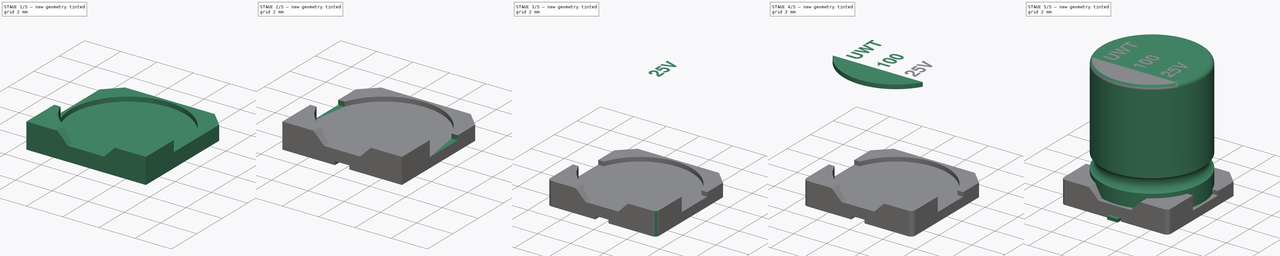
[diagram: build sequence overview — one tinted view per stage of 5, left to right]
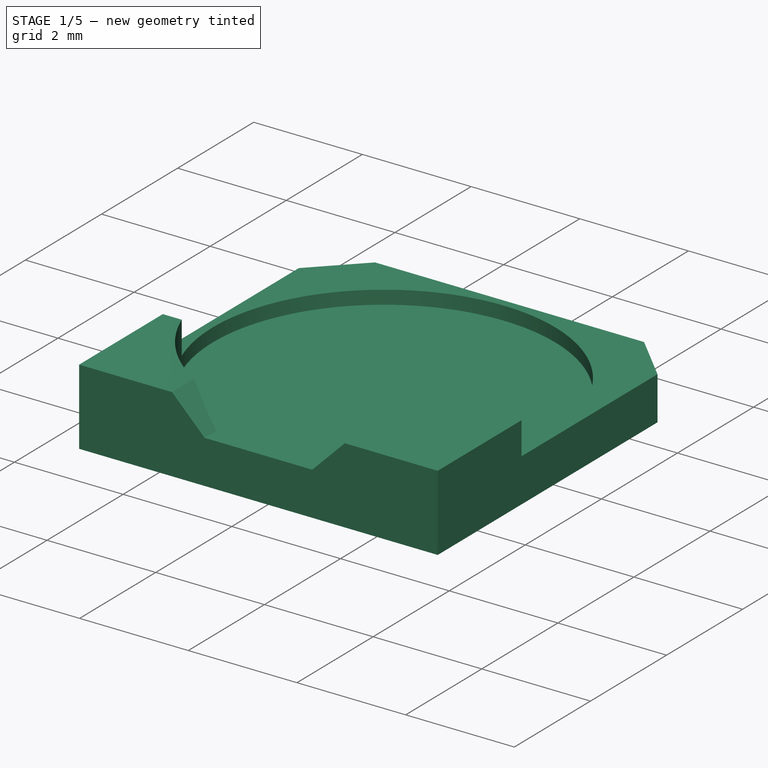
[diagram: stage 1 of 5 — iso view after this stage's code; geometry added in this stage tinted green]
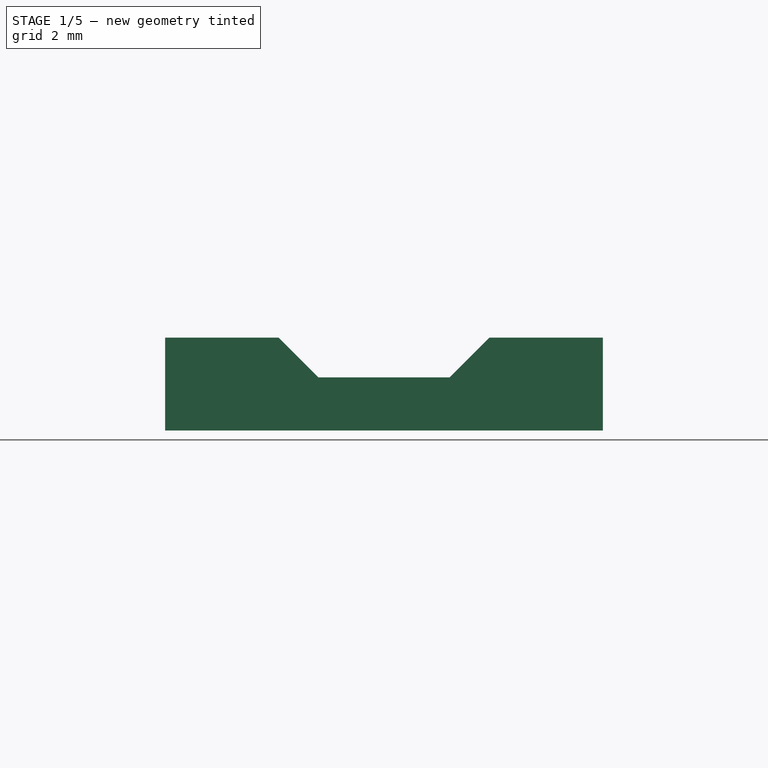
[diagram: stage 1 of 5 — front view after this stage's code; geometry added in this stage tinted green]
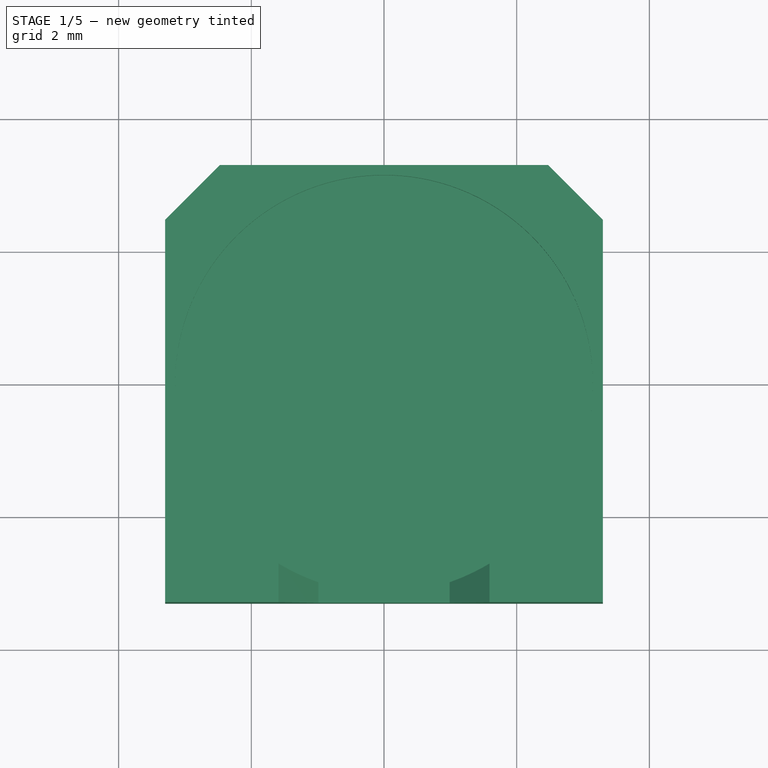
[diagram: stage 1 of 5 — top view after this stage's code; geometry added in this stage tinted green]
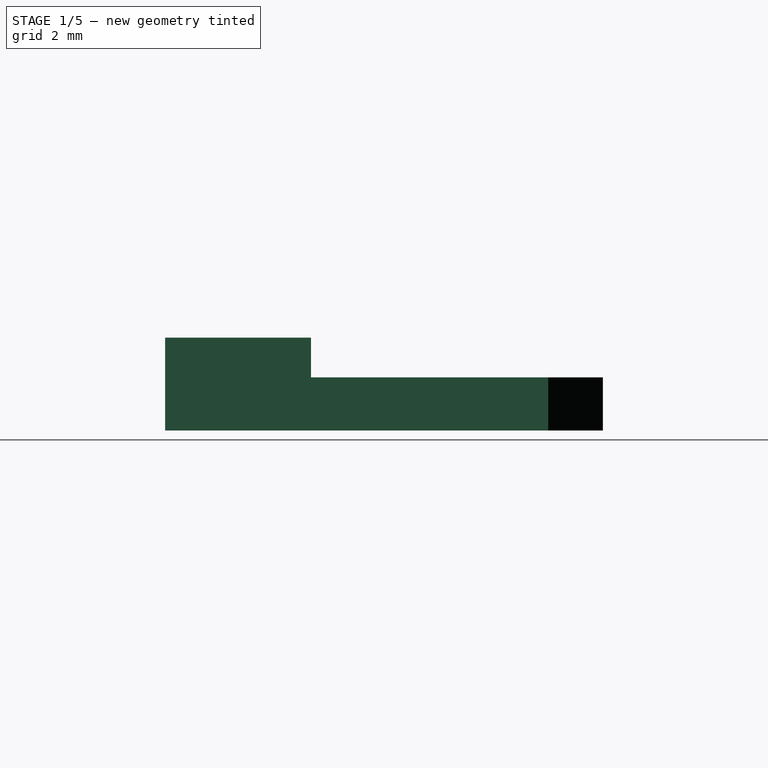
[diagram: stage 1 of 5 — right view after this stage's code; geometry added in this stage tinted green]
FCSTD DOCUMENT  (FreeCAD 0.19R16945 (Git))
Label: UWT1E101MCL1GS
License: All rights reserved
LicenseURL: http://en.wikipedia.org/wiki/All_rights_reserved
objects: Sketcher::SketchObject×10, PartDesign::Pocket×6, PartDesign::Body×5, PartDesign::Pad×3, Part::Part2DObjectPython×3, Part::Extrusion×3, PartDesign::Fillet×2, Spreadsheet::Sheet×1, PartDesign::Revolution×1, PartDesign::Mirrored×1, PartDesign::FeatureBase×1, Part::MultiFuse×1
note: 46 computed .brp shape members not serialized (recipe doc carries the construction recipe); baked Part::Feature solids carry a one-line shape summary decoded from their .brp

FEATURE [Spreadsheet::Sheet] Spreadsheet
  cells = B1=6.3x7.7; A2=dim_A; B2(dim_A)==2.4mm; A3=dim_B; B3(dim_B)==6.6mm; A4=dim_C; B4(dim_C)==6.6mm; A5=dim_E; B5(dim_E)==2.2mm; A6=dim_D; B6(dim_D)==6.3mm; A7=dim_L; B7(dim_L)==7.7mm; A8=dim_H; B8(dim_H)==0.65mm; A9=dim_t; B9(dim_t)==0.2mm; C9=lead thickness; A10=dim_p1; B10(dim_p1)==1.4mm; C10=base total height; A11=dim_p2; B11(dim_p2)==0.8mm; C11=base lowest height; A12=dim_p3; B12(dim_p3)==0.25mm; C12=base depth for cap; A13=dim_r1; B13(dim_r1)==0.5mm; C13=cap circle; A14=dim_r2; B14(dim_r2)==0.25mm; C14=cap fillet
FEATURE [Sketcher::SketchObject] Sketch
  MapMode = 5
  Support = -> [XY_Plane]
  expr: Constraints[12] = 0.75 * Spreadsheet.dim_C
  expr: Constraints[10] = Spreadsheet.dim_C
  expr: Constraints[9] = Spreadsheet.dim_B
  sketch-geometry (7):
    g0: LineSegment StartX=3.3 StartY=-3.3 StartZ=0 EndX=-3.3 EndY=-3.3 EndZ=0
    g1: LineSegment StartX=-3.3 StartY=-3.3 StartZ=0 EndX=-3.3 EndY=2.475 EndZ=0
    g2: LineSegment StartX=-3.3 StartY=2.475 StartZ=0 EndX=-2.475 EndY=3.3 EndZ=0
    g3: LineSegment StartX=-2.475 StartY=3.3 StartZ=0 EndX=2.475 EndY=3.3 EndZ=0
    g4: LineSegment StartX=2.475 StartY=3.3 StartZ=0 EndX=3.3 EndY=2.475 EndZ=0
    g5: LineSegment StartX=3.3 StartY=2.475 StartZ=0 EndX=3.3 EndY=-3.3 EndZ=0
    g6: LineSegment [constr] StartX=-2.475 StartY=3.3 StartZ=0 EndX=-2.475 EndY=-3.3 EndZ=0
  constraints (18):
    c: Coincident(g0,g1)
    c: Vertical(g1)
    c: Coincident(g1,g2)
    c: Coincident(g2,g3)
    c: Coincident(g3,g4)
    c: Coincident(g4,g5)
    c: Coincident(g5,g0)
    c: Symmetric(g0,g0,g-2)
    c: Symmetric(g3,g2,g-2)
    c: DistanceY(g0,g3) = 6.6
    c: DistanceX(g0,g0) = 6.6
    c: Angle(g4,g5) = 2.35619
    c: DistanceX(g3,g3) = 4.95
    c: Vertical(g5)
    c: Equal(g4,g2)
    c: Coincident(g6,g2)
    c: PointOnObject(g6,g0)
    c: Symmetric(g6,g2,g-1)
FEATURE [PartDesign::Pad] Pad
  Length = 1.4
  Length2 = 100
  Profile = -> Sketch
  Type = 0
  expr: Length = Spreadsheet.dim_p1
FEATURE [Sketcher::SketchObject] Sketch001
  MapMode = 5
  Placement = pos=(0,0,0) rot=(1,0,0;1.5708rad)
  Support = -> [XZ_Plane]
  expr: Constraints[8] = Spreadsheet.dim_p2
  expr: Constraints[6] = 0.3 * Spreadsheet.dim_C
  sketch-geometry (4):
    g0: LineSegment StartX=0.99 StartY=0.8 StartZ=0 EndX=-0.99 EndY=0.8 EndZ=0
    g1: LineSegment StartX=-0.99 StartY=0.8 StartZ=0 EndX=-2.3222 EndY=2.1322 EndZ=0
    g2: LineSegment StartX=-2.3222 StartY=2.1322 StartZ=0 EndX=2.3222 EndY=2.1322 EndZ=0
    g3: LineSegment StartX=2.3222 StartY=2.1322 StartZ=0 EndX=0.99 EndY=0.8 EndZ=0
  constraints (9):
    c: Coincident(g0,g1)
    c: Coincident(g1,g2)
    c: Coincident(g2,g3)
    c: Coincident(g3,g0)
    c: Symmetric(g2,g1,g-2)
    c: Symmetric(g0,g0,g-2)
    c: DistanceX(g0,g0) = 1.98
    c: Angle(g3,g0) = 2.35619
    c: DistanceY(g-1,g0) = 0.8
FEATURE [PartDesign::Pocket] Pocket
  BaseFeature = -> Pad
  Length = 5
  Length2 = 100
  Midplane = true
  Profile = -> Sketch001
  Refine = true
  Type = 1
FEATURE [Sketcher::SketchObject] Sketch002
  MapMode = 5
  Placement = pos=(0,0,0) rot=(0.57735,0.57735,0.57735;2.0944rad)
  Support = -> [YZ_Plane]
  expr: Constraints[9] = Spreadsheet.dim_p2
  expr: Constraints[7] = Spreadsheet.dim_C / 6
  sketch-geometry (4):
    g0: LineSegment StartX=-1.1 StartY=3.10973 StartZ=0 EndX=-1.1 EndY=0.8 EndZ=0
    g1: LineSegment StartX=-1.1 StartY=0.8 StartZ=0 EndX=3.43585 EndY=0.8 EndZ=0
    g2: LineSegment StartX=3.43585 StartY=0.8 StartZ=0 EndX=3.43585 EndY=3.10973 EndZ=0
    g3: LineSegment StartX=3.43585 StartY=3.10973 StartZ=0 EndX=-1.1 EndY=3.10973 EndZ=0
  constraints (10):
    c: Coincident(g0,g1)
    c: Horizontal(g1)
    c: Coincident(g1,g2)
    c: Vertical(g2)
    c: Coincident(g2,g3)
    c: Coincident(g3,g0)
    c: Horizontal(g3)
    c: DistanceX(g0,g-1) = 1.1
    c: Vertical(g0)
    c: DistanceY(g-1,g0) = 0.8
FEATURE [PartDesign::Pocket] Pocket001
  BaseFeature = -> Pocket
  Length = 5
  Length2 = 100
  Midplane = true
  Profile = -> Sketch002
  Refine = true
  Type = 1
FEATURE [Sketcher::SketchObject] Sketch003
  AttachmentOffset = pos=(0,0,0.8) rot=(0,0,1;0rad)
  MapMode = 5
  Placement = pos=(0,0,0.8) rot=(0,0,1;0rad)
  Support = -> [XY_Plane]
  expr: AttachmentOffset.Base.z = Spreadsheet.dim_p2
  expr: Constraints[1] = Spreadsheet.dim_D / 2
  sketch-geometry (1):
    g0: Circle CenterX=0 CenterY=0 CenterZ=0 NormalX=0 NormalY=0 NormalZ=1 AngleXU=0 Radius=3.15
  constraints (2):
    c: Coincident(g0,g-1)
    c: Radius(g0) = 3.15
FEATURE [PartDesign::Pocket] Pocket002
  BaseFeature = -> Pocket001
  Length = 0.25
  Length2 = 1.4
  Profile = -> Sketch003
  Type = 4
  expr: Length = Spreadsheet.dim_p3
  expr: Length2 = Spreadsheet.dim_p1
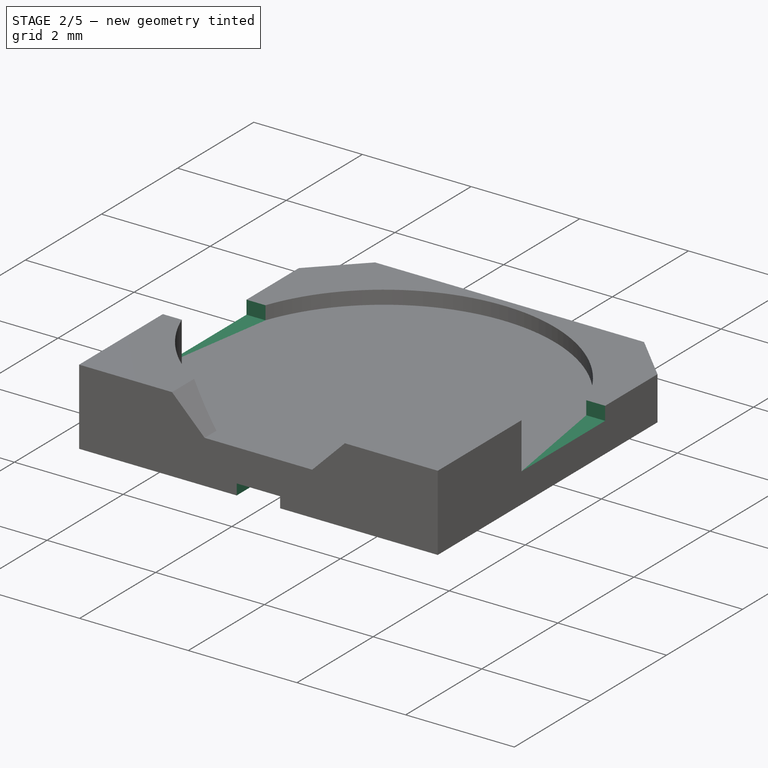
[diagram: stage 2 of 5 — iso view after this stage's code; geometry added in this stage tinted green]
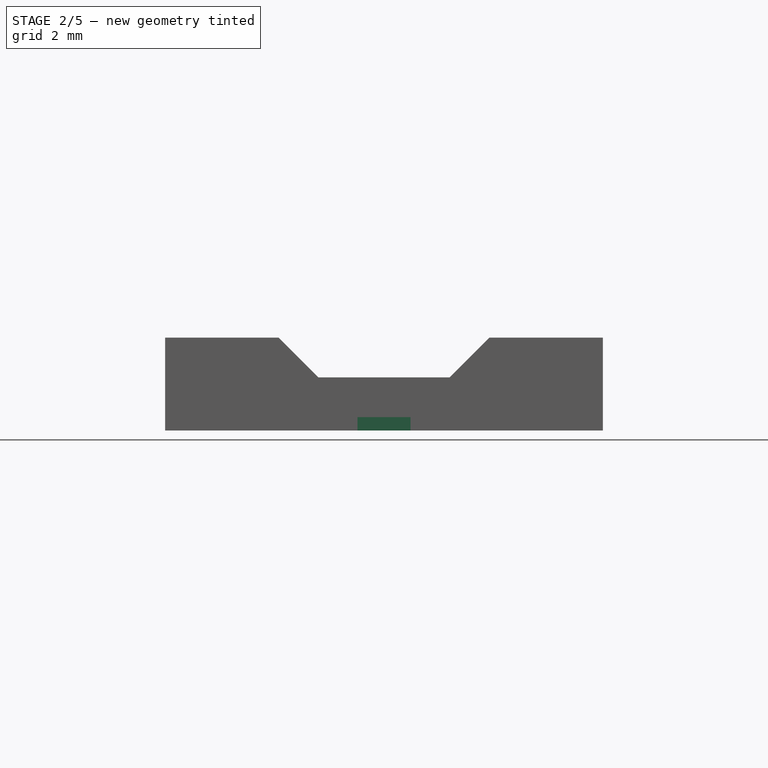
[diagram: stage 2 of 5 — front view after this stage's code; geometry added in this stage tinted green]
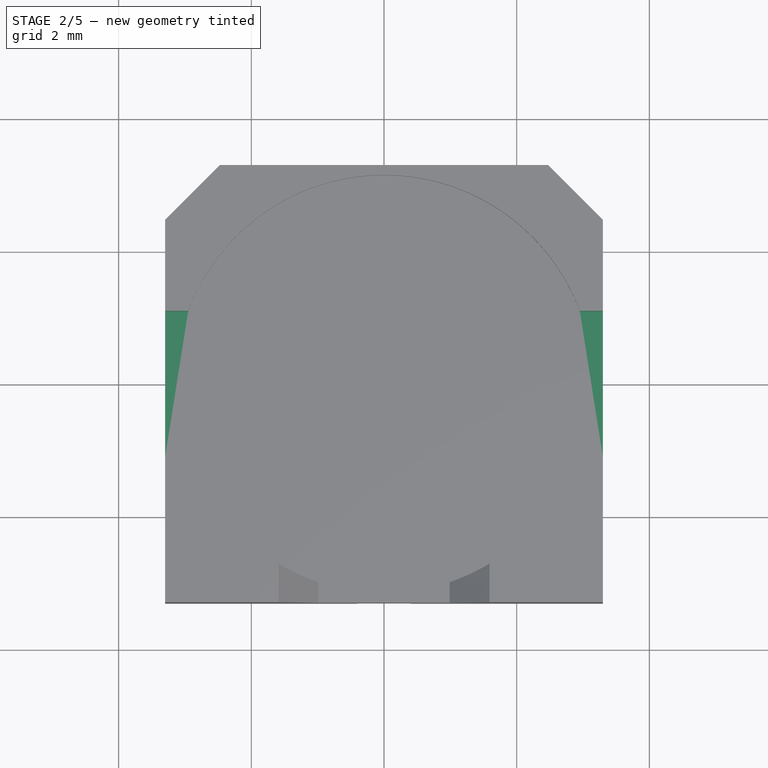
[diagram: stage 2 of 5 — top view after this stage's code; geometry added in this stage tinted green]
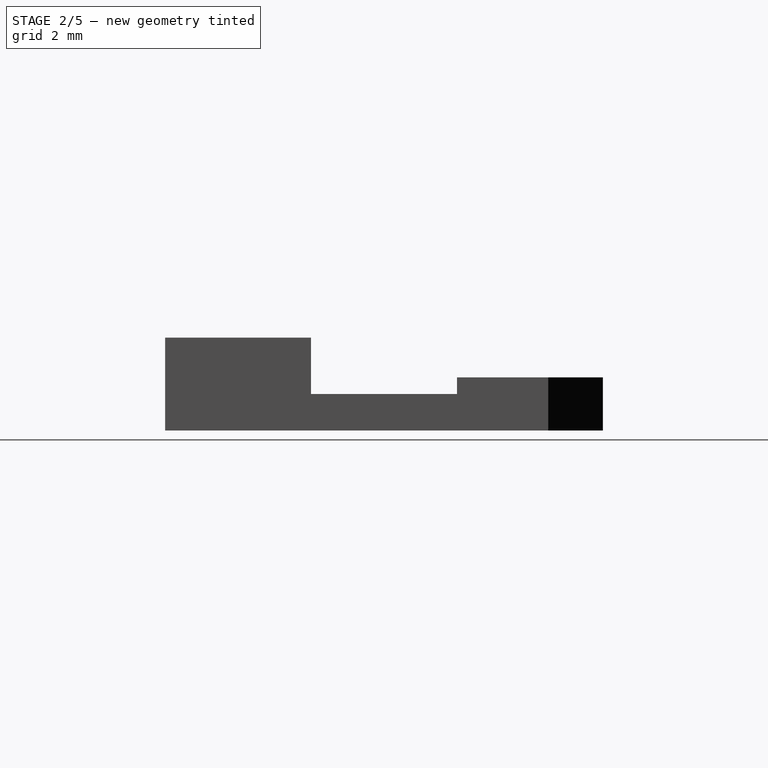
[diagram: stage 2 of 5 — right view after this stage's code; geometry added in this stage tinted green]
FEATURE [Sketcher::SketchObject] Sketch004
  MapMode = 5
  Placement = pos=(0,0,0) rot=(0.57735,0.57735,0.57735;2.0944rad)
  Support = -> [YZ_Plane]
  expr: Constraints[9] = Spreadsheet.dim_p2 - Spreadsheet.dim_p3
  expr: Constraints[8] = Spreadsheet.dim_C / 3
  sketch-geometry (4):
    g0: LineSegment StartX=-1.1 StartY=3.86533 StartZ=0 EndX=1.1 EndY=3.86533 EndZ=0
    g1: LineSegment StartX=1.1 StartY=3.86533 StartZ=0 EndX=1.1 EndY=0.55 EndZ=0
    g2: LineSegment StartX=1.1 StartY=0.55 StartZ=0 EndX=-1.1 EndY=0.55 EndZ=0
    g3: LineSegment StartX=-1.1 StartY=0.55 StartZ=0 EndX=-1.1 EndY=3.86533 EndZ=0
  constraints (10):
    c: Coincident(g0,g1)
    c: Coincident(g1,g2)
    c: Coincident(g2,g3)
    c: Coincident(g3,g0)
    c: Horizontal(g0)
    c: Vertical(g1)
    c: Vertical(g3)
    c: Symmetric(g1,g2,g-2)
    c: DistanceX(g2,g2) = 2.2
    c: DistanceY(g-1,g1) = 0.55
FEATURE [PartDesign::Pocket] Pocket003
  BaseFeature = -> Pocket002
  Length = 5
  Length2 = 100
  Midplane = true
  Profile = -> Sketch004
  Refine = true
  Type = 1
FEATURE [Sketcher::SketchObject] Sketch006
  MapMode = 5
  Support = -> [XY_Plane]
  expr: Constraints[10] = Spreadsheet.dim_A
  expr: Constraints[9] = Spreadsheet.dim_E / 2
  expr: Constraints[8] = Spreadsheet.dim_H + 0.15mm
  sketch-geometry (4):
    g0: LineSegment StartX=-0.4 StartY=1.1 StartZ=0 EndX=0.4 EndY=1.1 EndZ=0
    g1: LineSegment StartX=0.4 StartY=1.1 StartZ=0 EndX=0.4 EndY=3.5 EndZ=0
    g2: LineSegment StartX=0.4 StartY=3.5 StartZ=0 EndX=-0.4 EndY=3.5 EndZ=0
    g3: LineSegment StartX=-0.4 StartY=3.5 StartZ=0 EndX=-0.4 EndY=1.1 EndZ=0
  constraints (11):
    c: Coincident(g0,g1)
    c: Coincident(g1,g2)
    c: Coincident(g2,g3)
    c: Coincident(g3,g0)
    c: Horizontal(g2)
    c: Vertical(g1)
    c: Vertical(g3)
    c: Symmetric(g0,g0,g-2)
    c: DistanceX(g2,g2) = 0.8
    c: DistanceY(g-1,g0) = 1.1
    c: DistanceY(g1,g1) = 2.4
FEATURE [PartDesign::Pocket] Pocket004
  BaseFeature = -> Pocket003
  Length = 0.2
  Length2 = 100
  Profile = -> Sketch006
  Reversed = true
  Type = 0
  expr: Length = Spreadsheet.dim_t
FEATURE [PartDesign::Mirrored] Mirrored
  BaseFeature = -> Pocket004
  MirrorPlane = -> XZ_Plane
  Originals = -> [Pocket004]
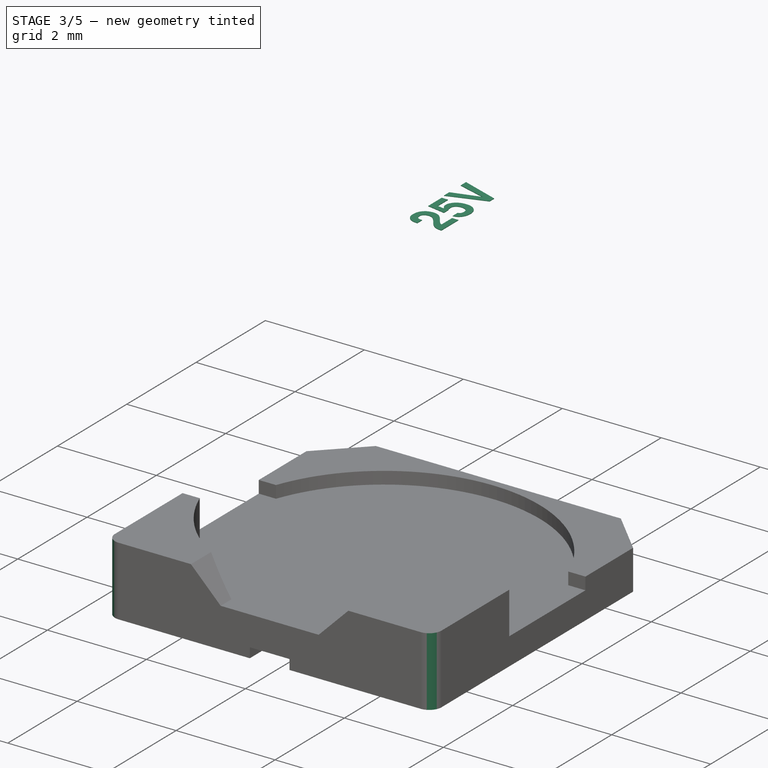
[diagram: stage 3 of 5 — iso view after this stage's code; geometry added in this stage tinted green]
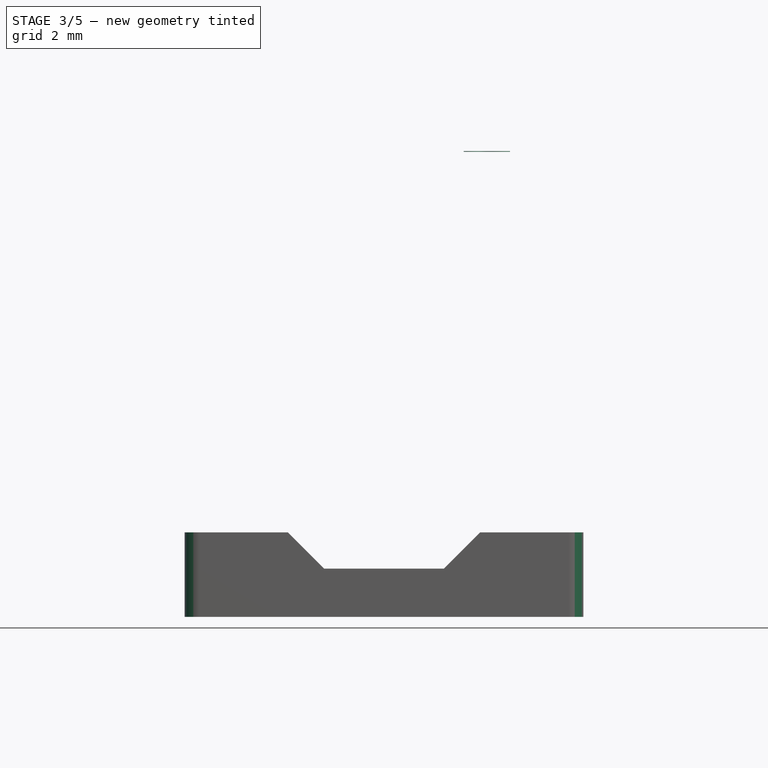
[diagram: stage 3 of 5 — front view after this stage's code; geometry added in this stage tinted green]
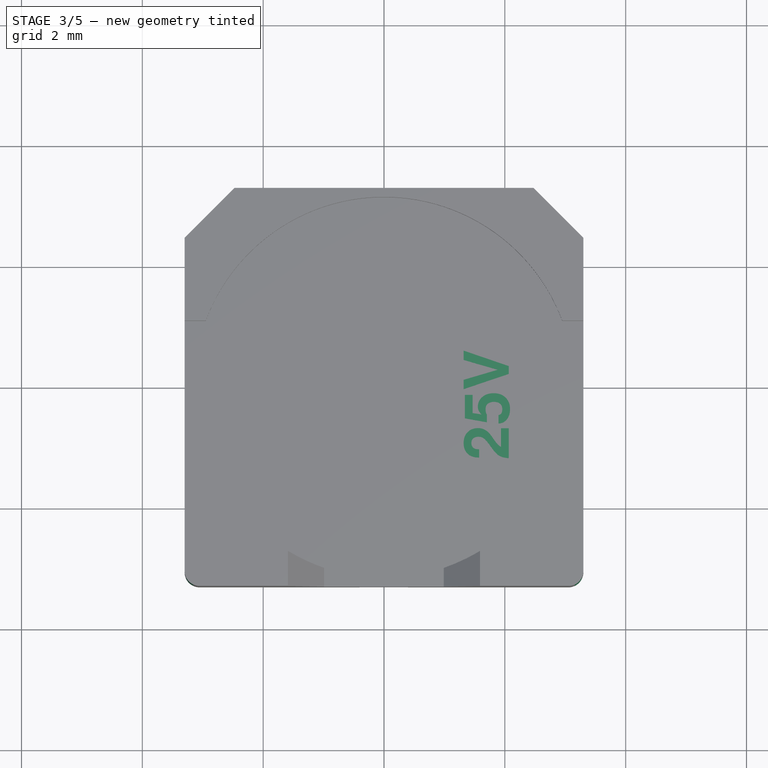
[diagram: stage 3 of 5 — top view after this stage's code; geometry added in this stage tinted green]
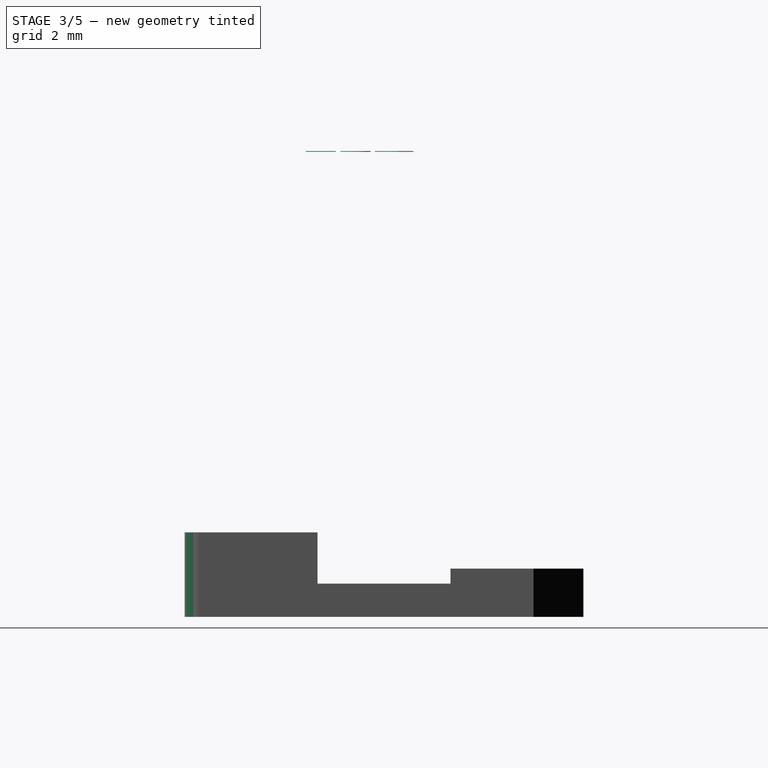
[diagram: stage 3 of 5 — right view after this stage's code; geometry added in this stage tinted green]
FEATURE [Sketcher::SketchObject] Sketch005
  AttachmentOffset = pos=(0,0,0) rot=(0,1,0;-1.5708rad)
  MapMode = 5
  Placement = pos=(0,0,0) rot=(-0.57735,0.57735,0.57735;4.18879rad)
  Support = -> [XZ_Plane001]
  expr: Constraints[20] = Spreadsheet.dim_r1 / 2
  expr: Constraints[19] = Spreadsheet.dim_p1 + Spreadsheet.dim_p3
  expr: Constraints[18] = Spreadsheet.dim_L
  expr: Constraints[17] = Spreadsheet.dim_p2 - Spreadsheet.dim_p3
  expr: Constraints[16] = Spreadsheet.dim_r1
  expr: Constraints[13] = Spreadsheet.dim_r2
  expr: Constraints[12] = Spreadsheet.dim_D / 2
  sketch-geometry (7):
    g0: LineSegment StartX=0 StartY=0.55 StartZ=0 EndX=3.15 EndY=0.55 EndZ=0
    g1: LineSegment StartX=3.15 StartY=0.55 StartZ=0 EndX=3.15 EndY=1.65 EndZ=0
    g2: LineSegment StartX=3.15 StartY=2.51603 StartZ=0 EndX=3.15 EndY=7.45 EndZ=0
    g3: LineSegment StartX=2.9 StartY=7.7 StartZ=0 EndX=0 EndY=7.7 EndZ=0
    g4: LineSegment StartX=0 StartY=7.7 StartZ=0 EndX=0 EndY=0.55 EndZ=0
    g5: ArcOfCircle CenterX=2.9 CenterY=7.45 CenterZ=0 NormalX=0 NormalY=0 NormalZ=1 AngleXU=0 Radius=0.25 StartAngle=-1.91e-13 EndAngle=1.5708
    g6: ArcOfCircle CenterX=3.4 CenterY=2.08301 CenterZ=0 NormalX=0 NormalY=0 NormalZ=1 AngleXU=0 Radius=0.5 StartAngle=2.0944 EndAngle=4.18879
  constraints (21):
    c: PointOnObject(g0,g-2)
    c: Horizontal(g0)
    c: Coincident(g1,g0)
    c: Vertical(g1)
    c: Vertical(g2)
    c: Horizontal(g3)
    c: Coincident(g4,g3)
    c: Coincident(g4,g0)
    c: Vertical(g4)
    c: Tangent(g2,g5) = -1.5708
    c: Tangent(g3,g5) = -1.5708
    c: Vertical(g1,g2)
    c: DistanceX(g0,g0) = 3.15
    c: DistanceY(g5,g3) = 0.25
    c: Coincident(g6,g1)
    c: Coincident(g6,g2)
    c: Radius(g6) = 0.5
    c: DistanceY(g-1,g0) = 0.55
    c: DistanceY(g-1,g3) = 7.7
    c: DistanceY(g-1,g1) = 1.65
    c: DistanceX(g2,g6) = 0.25
FEATURE [PartDesign::Revolution] Revolution
  Angle = 360
  Axis = (0,-2e-16,1)
  Base = (0,0,0)
  Placement = pos=(0,0,0) rot=(1,0,0;1.5708rad)
  Profile = -> Sketch005
  ReferenceAxis = -> Sketch005 [V_Axis]
  Refine = true
  Reversed = true
FEATURE [PartDesign::Body] Body003  label="LeadClone"
  BaseFeature = -> Pad001
  Group = -> [Clone]
  Origin = -> Origin003
  Placement = pos=(0,0,0) rot=(0,0,1;3.14159rad)
  Tip = -> Clone
FEATURE [Sketcher::SketchObject] Sketch008
  AttachmentOffset = pos=(0,0,7.7) rot=(0,0,1;0rad)
  MapMode = 5
  Placement = pos=(0,0,7.7) rot=(0,0,1;0rad)
  Support = -> [XY_Plane004]
  expr: Constraints[5] = Spreadsheet.dim_D / 4
  expr: Constraints[4] = Spreadsheet.dim_D / 2
  expr: AttachmentOffset.Base.z = Spreadsheet.dim_L
  sketch-geometry (2):
    g0: ArcOfCircle CenterX=0 CenterY=0 CenterZ=0 NormalX=0 NormalY=0 NormalZ=1 AngleXU=0 Radius=3.15 StartAngle=3.66519 EndAngle=5.75959
    g1: LineSegment StartX=-2.72798 StartY=-1.575 StartZ=0 EndX=2.72798 EndY=-1.575 EndZ=0
  constraints (6):
    c: Coincident(g1,g0)
    c: Coincident(g1,g0)
    c: Horizontal(g1)
    c: Coincident(g0,g-1)
    c: Radius(g0) = 3.15
    c: DistanceY(g0,g-1) = 1.575
FEATURE [Sketcher::SketchObject] Sketch009
  AttachmentOffset = pos=(0,0,7.7) rot=(0,0,1;0rad)
  MapMode = 5
  Placement = pos=(0,0,7.7) rot=(0,0,1;0rad)
  Support = -> [XY_Plane001]
  expr: AttachmentOffset.Base.z = Spreadsheet.dim_L
  expr: Constraints[5] = Spreadsheet.dim_D / 4
  expr: Constraints[4] = Spreadsheet.dim_D / 2
  sketch-geometry (2):
    g0: ArcOfCircle CenterX=0 CenterY=0 CenterZ=0 NormalX=0 NormalY=0 NormalZ=1 AngleXU=0 Radius=3.15 StartAngle=3.66519 EndAngle=5.75959
    g1: LineSegment StartX=-2.72798 StartY=-1.575 StartZ=0 EndX=2.72798 EndY=-1.575 EndZ=0
  constraints (6):
    c: Coincident(g0,g-1)
    c: Coincident(g1,g0)
    c: Coincident(g1,g0)
    c: Horizontal(g1)
    c: Radius(g0) = 3.15
    c: DistanceY(g0,g-1) = 1.575
FEATURE [PartDesign::Pocket] Pocket005
  BaseFeature = -> Revolution
  Length = 0.25
  Length2 = 100
  Placement = pos=(0,0,0) rot=(1,0,0;1.5708rad)
  Profile = -> Sketch009
  Type = 0
  expr: Length = Spreadsheet.dim_r2
FEATURE [Part::Extrusion] Extrude002  label="Text_50V"
  Base = -> ShapeString002
  Dir = (0,-2e-16,1)
  DirMode = 2
  FaceMakerClass = Part::FaceMakerBullseye
  LengthFwd = 0.01
  LengthRev = 0
  Solid = false
  Symmetric = false
FEATURE [PartDesign::Fillet] Fillet001
  Base = -> Mirrored [Edge6,Edge12]
  BaseFeature = -> Mirrored
  Radius = 0.25
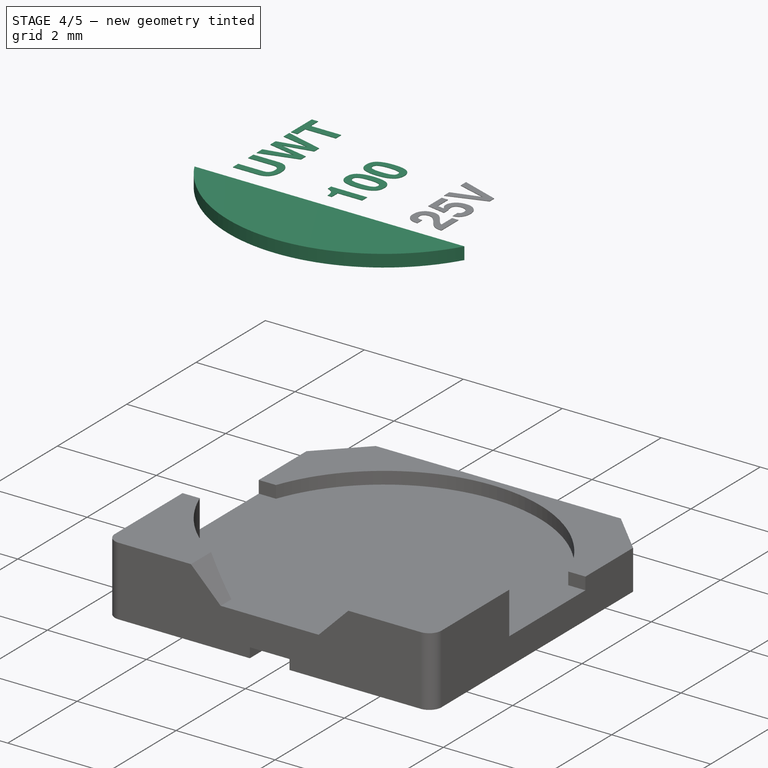
[diagram: stage 4 of 5 — iso view after this stage's code; geometry added in this stage tinted green]
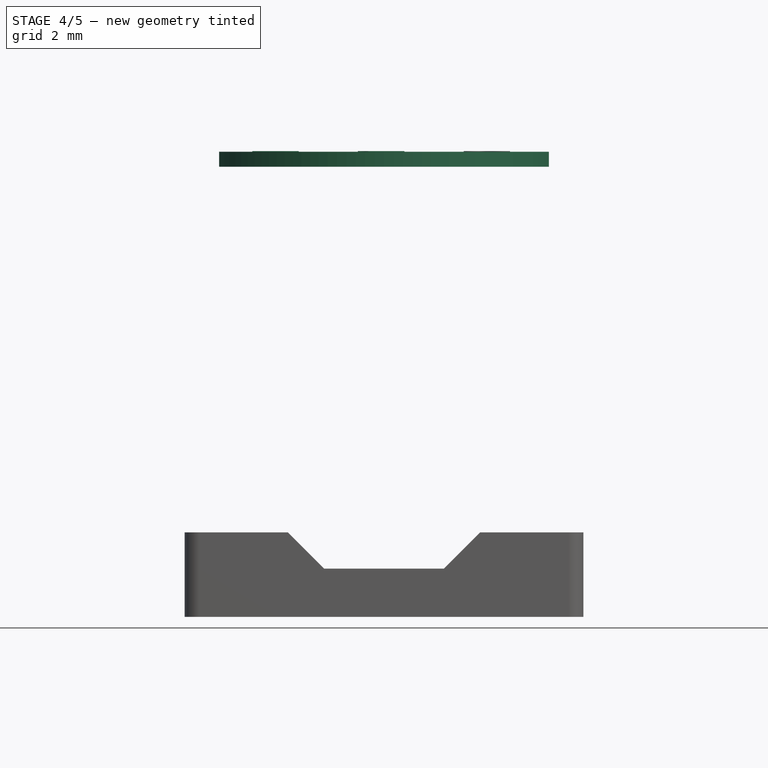
[diagram: stage 4 of 5 — front view after this stage's code; geometry added in this stage tinted green]
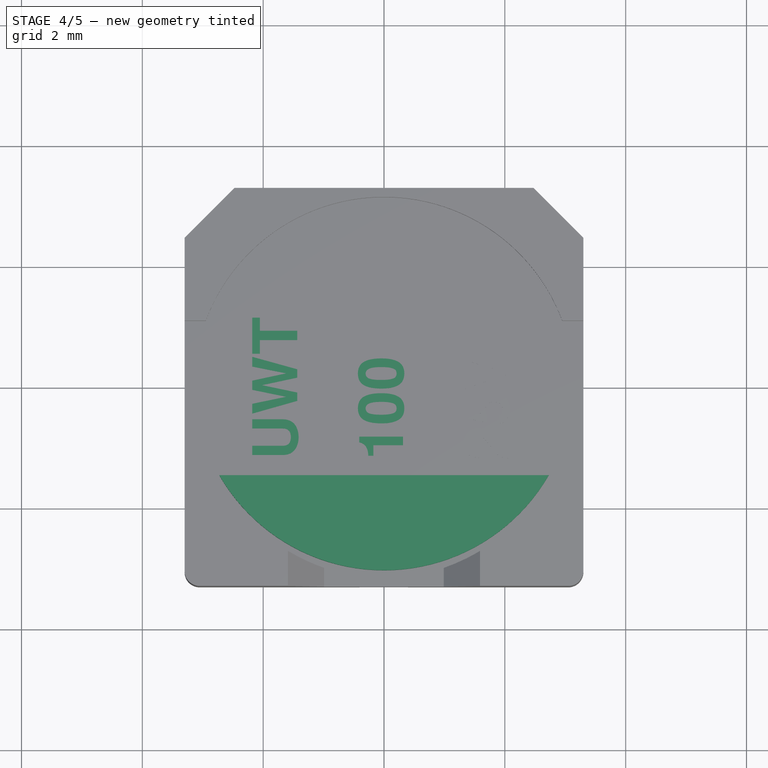
[diagram: stage 4 of 5 — top view after this stage's code; geometry added in this stage tinted green]
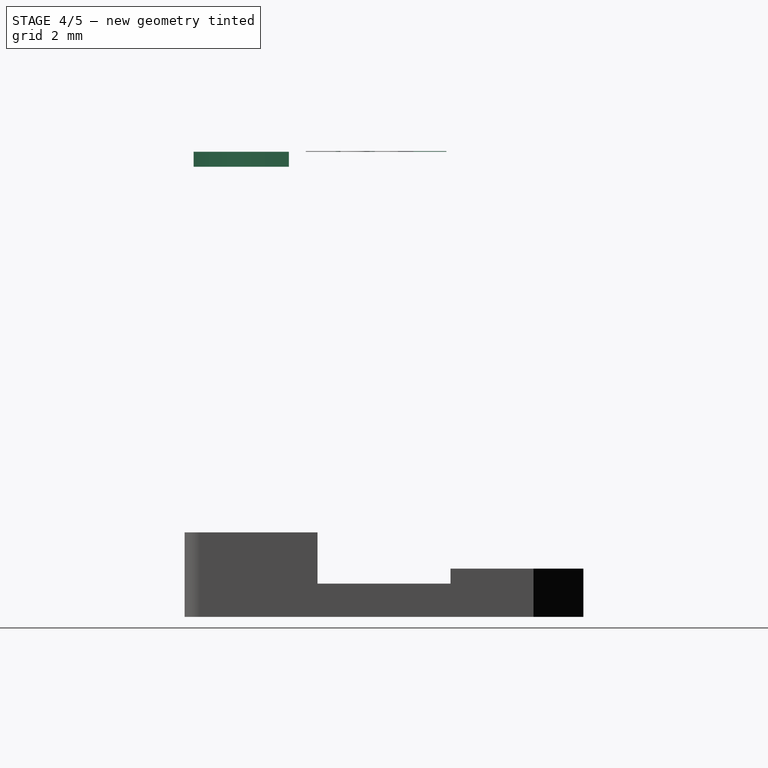
[diagram: stage 4 of 5 — right view after this stage's code; geometry added in this stage tinted green]
FEATURE [PartDesign::Body] Body001  label="Capacitor"
  Group = -> [Sketch005,Revolution,Sketch009,Pocket005]
  Origin = -> Origin001
  Tip = -> Pocket005
FEATURE [PartDesign::Pad] Pad002
  Length = 0.25
  Length2 = 100
  Profile = -> Sketch008
  Reversed = true
  Type = 0
  expr: Length = Spreadsheet.dim_r2
FEATURE [PartDesign::Body] Body004  label="Marking"
  Group = -> [Sketch008,Pad002,Fillet]
  Origin = -> Origin004
  Tip = -> Fillet
FEATURE [Part::Part2DObjectPython] ShapeString  # Draft 2D object (typed FeaturePython)
  AttachmentOffset = pos=(-0.25,1,0) rot=(0,0,1;3.14159rad)
  FontFile = <userpath>/Desktop/GitHub/freecad-projects/00-fonts/FreeSansBold.ttf
  MapMode = 6
  Placement = pos=(-1.43503,-1.325,7.7) rot=(0,0,1;1.5708rad)
  Size = 0.4
  String = UWT
  Support = -> [Pocket005]
  Tracking = 0
FEATURE [Part::Part2DObjectPython] ShapeString001  # Draft 2D object (typed FeaturePython)
  AttachmentOffset = pos=(-0.25,2.75,0) rot=(0,0,1;3.14159rad)
  FontFile = <userpath>/Desktop/GitHub/freecad-projects/00-fonts/FreeSansBold.ttf
  MapMode = 6
  Placement = pos=(0.314969,-1.325,7.7) rot=(0,0,1;1.5708rad)
  Size = 0.4
  String = 100
  Support = -> [Pocket005]
  Tracking = 0
FEATURE [Part::Part2DObjectPython] ShapeString002  # Draft 2D object (typed FeaturePython)
  AttachmentOffset = pos=(-0.25,4.5,0) rot=(0,0,1;3.14159rad)
  FontFile = <userpath>/Desktop/GitHub/freecad-projects/00-fonts/FreeSansBold.ttf
  MapMode = 6
  Placement = pos=(2.06497,-1.325,7.7) rot=(0,0,1;1.5708rad)
  Size = 0.4
  String = 25V
  Support = -> [Pocket005]
  Tracking = 0
FEATURE [Part::Extrusion] Extrude  label="Text_UWT"
  Base = -> ShapeString
  Dir = (0,-2e-16,1)
  DirMode = 2
  FaceMakerClass = Part::FaceMakerBullseye
  LengthFwd = 0.01
  LengthRev = 0
  Solid = true
  Symmetric = false
FEATURE [Part::Extrusion] Extrude001  label="Text_1"
  Base = -> ShapeString001
  Dir = (0,-2e-16,1)
  DirMode = 2
  FaceMakerClass = Part::FaceMakerBullseye
  LengthFwd = 0.01
  LengthRev = 0
  Solid = false
  Symmetric = false
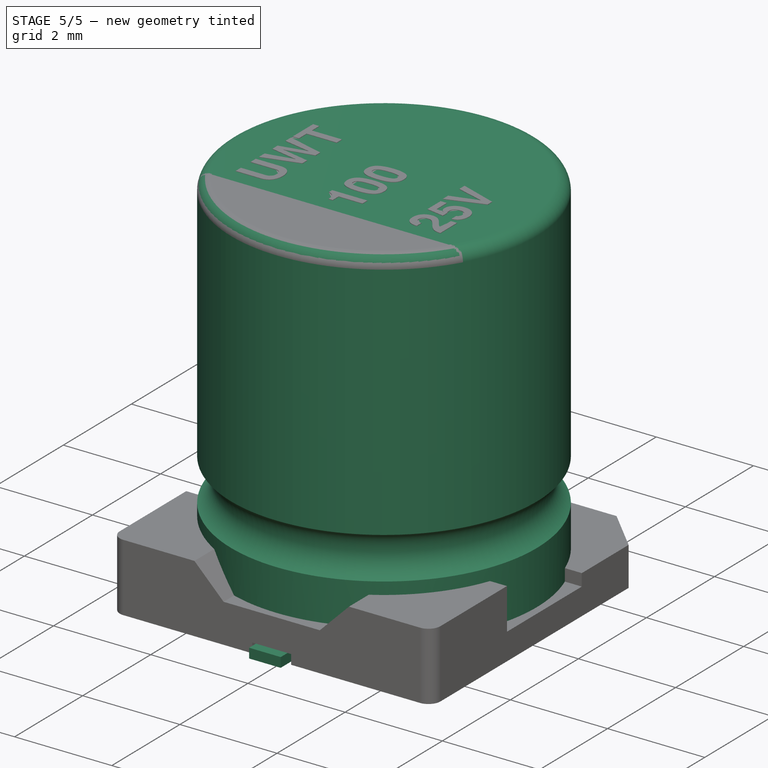
[diagram: stage 5 of 5 — iso view after this stage's code; geometry added in this stage tinted green]
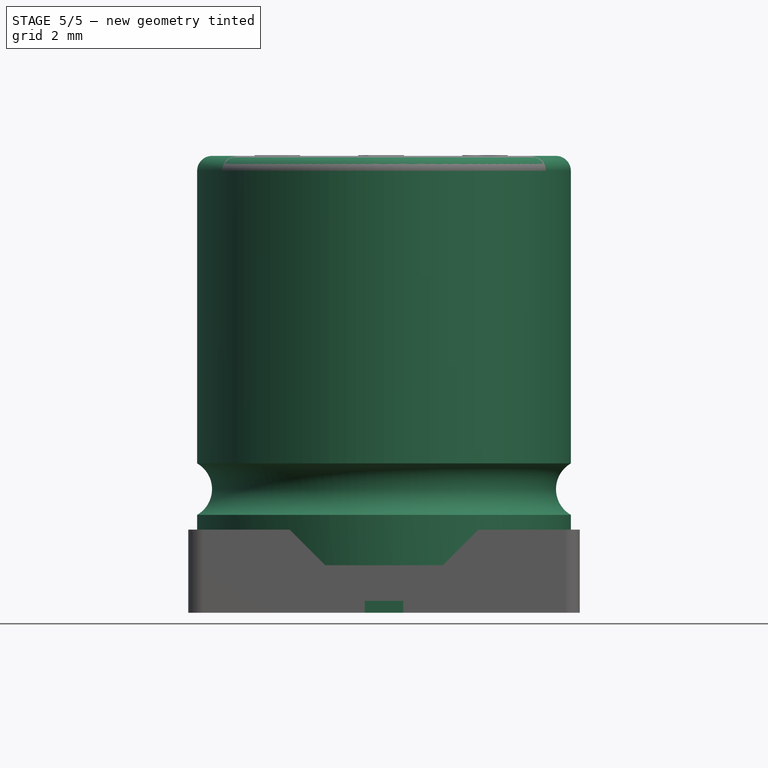
[diagram: stage 5 of 5 — front view after this stage's code; geometry added in this stage tinted green]
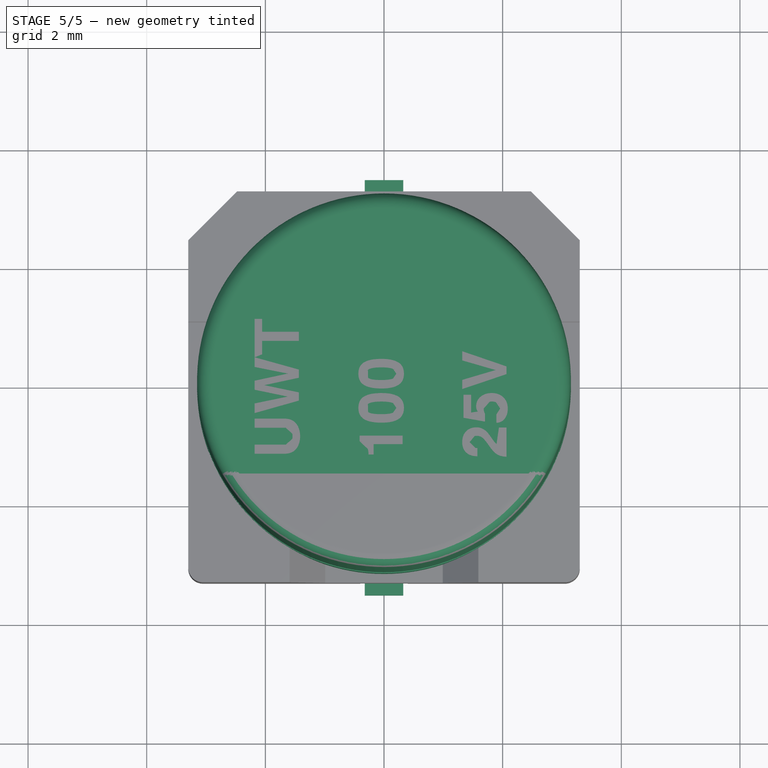
[diagram: stage 5 of 5 — top view after this stage's code; geometry added in this stage tinted green]
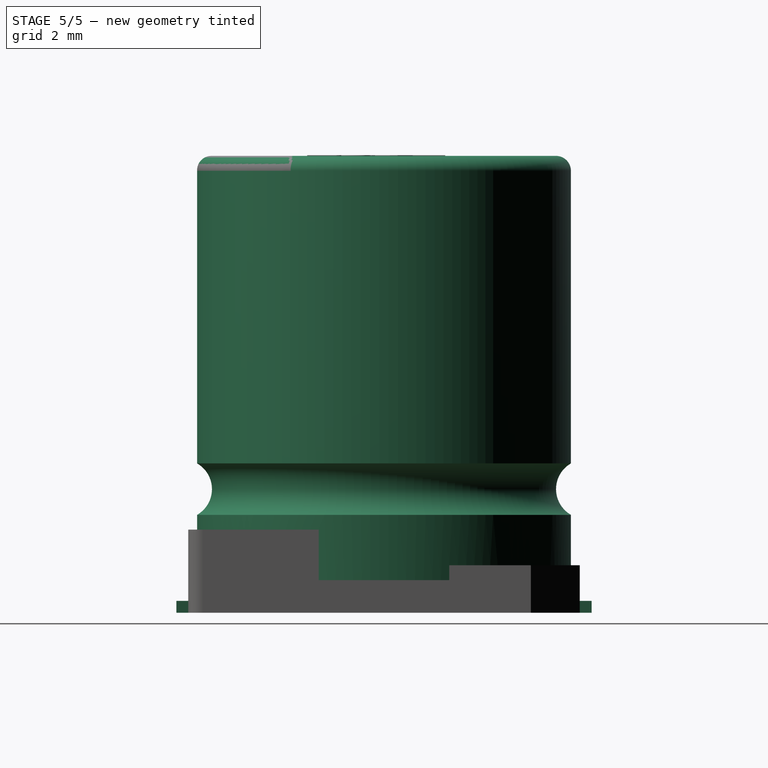
[diagram: stage 5 of 5 — right view after this stage's code; geometry added in this stage tinted green]
FEATURE [Sketcher::SketchObject] Sketch007
  MapMode = 5
  Support = -> [XY_Plane002]
  expr: Constraints[10] = Spreadsheet.dim_E / 2
  expr: Constraints[9] = Spreadsheet.dim_A
  expr: Constraints[8] = Spreadsheet.dim_H
  sketch-geometry (4):
    g0: LineSegment StartX=-0.325 StartY=3.5 StartZ=0 EndX=0.325 EndY=3.5 EndZ=0
    g1: LineSegment StartX=0.325 StartY=3.5 StartZ=0 EndX=0.325 EndY=1.1 EndZ=0
    g2: LineSegment StartX=0.325 StartY=1.1 StartZ=0 EndX=-0.325 EndY=1.1 EndZ=0
    g3: LineSegment StartX=-0.325 StartY=1.1 StartZ=0 EndX=-0.325 EndY=3.5 EndZ=0
  constraints (11):
    c: Coincident(g0,g1)
    c: Coincident(g1,g2)
    c: Coincident(g2,g3)
    c: Coincident(g3,g0)
    c: Horizontal(g2)
    c: Vertical(g1)
    c: Vertical(g3)
    c: Symmetric(g0,g0,g-2)
    c: DistanceX(g0,g0) = 0.65
    c: DistanceY(g1,g1) = 2.4
    c: DistanceY(g-1,g1) = 1.1
FEATURE [PartDesign::Pad] Pad001
  Length = 0.2
  Length2 = 100
  Profile = -> Sketch007
  Type = 0
  expr: Length = Spreadsheet.dim_t
FEATURE [PartDesign::Body] Body002  label="Lead"
  Group = -> [Sketch007,Pad001]
  Origin = -> Origin002
  Tip = -> Pad001
FEATURE [PartDesign::FeatureBase] Clone
  BaseFeature = -> Pad001
FEATURE [PartDesign::Fillet] Fillet
  Base = -> Pad002 [Edge3]
  BaseFeature = -> Pad002
  Radius = 0.24
  expr: Radius = Spreadsheet.dim_r2 - 0.01mm
FEATURE [PartDesign::Body] Body  label="Platform"
  Group = -> [Sketch,Pad,Sketch001,Pocket,Sketch002,Pocket001,Sketch003,Pocket002,Sketch004,Pocket003,Sketch006,Pocket004,Mirrored,Fillet001]
  Origin = -> Origin
  Tip = -> Fillet001
FEATURE [Part::MultiFuse] Fusion  label="UWT1E101MCL1GS"
  Shapes = -> [Body,Body003,Extrude,Extrude001,Extrude002,Body001,Body004,Body002]
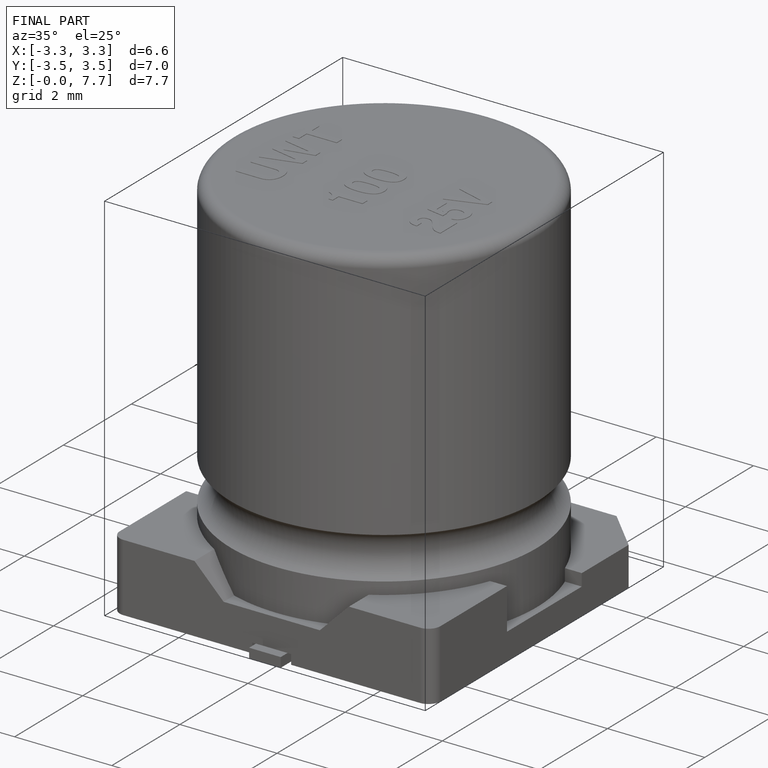
[diagram: finished part — iso view with bounding-box wireframe]
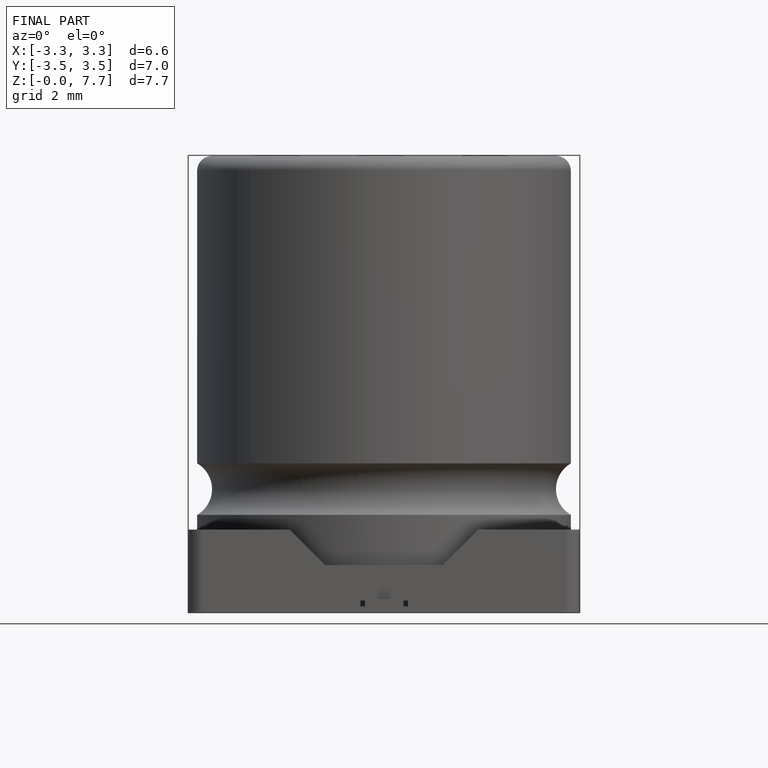
[diagram: finished part — front view with bounding-box wireframe]
